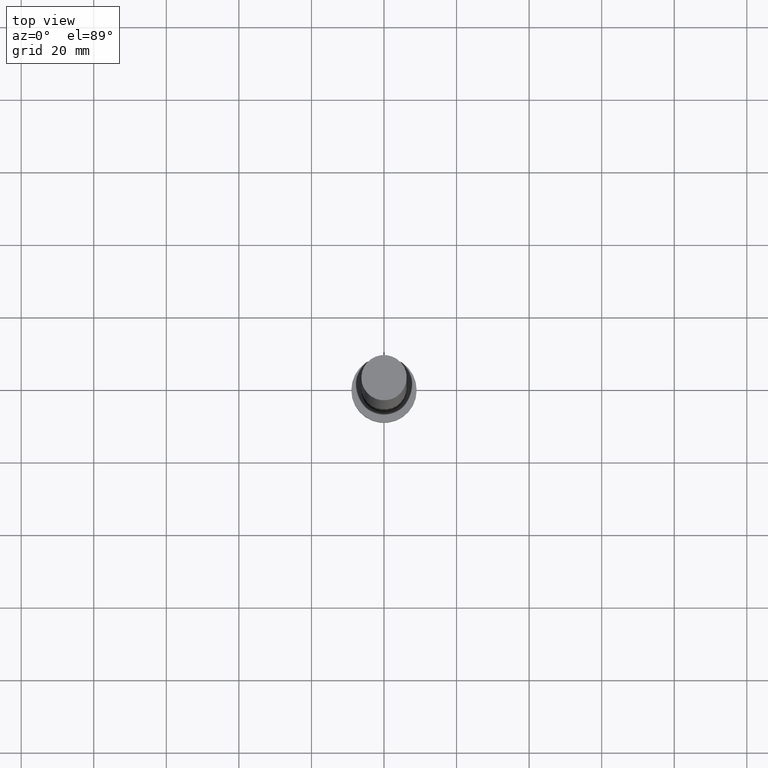
[diagram: clean part render]
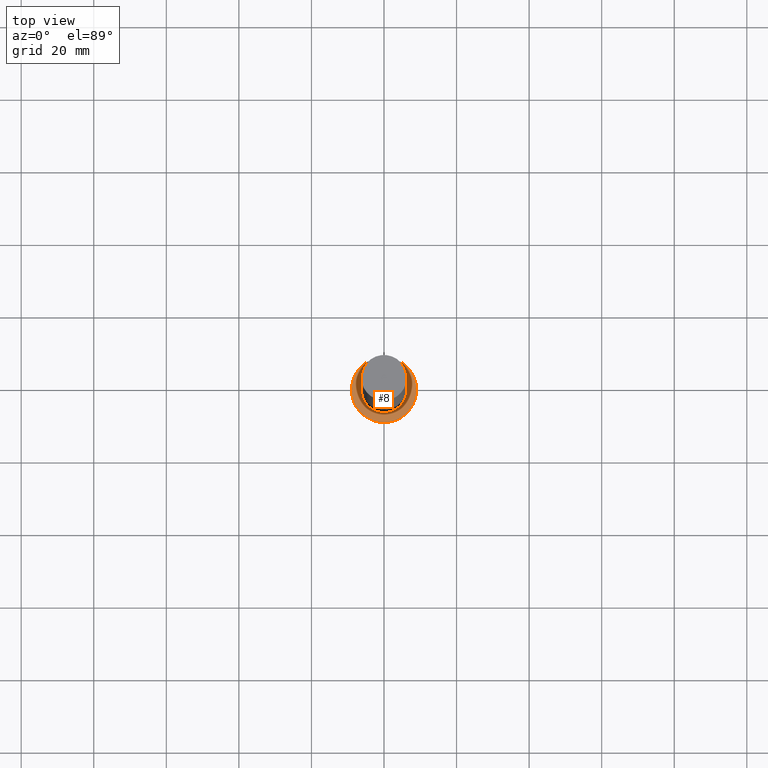
[diagram: same view with one face highlighted and labeled with its STEP entity id]
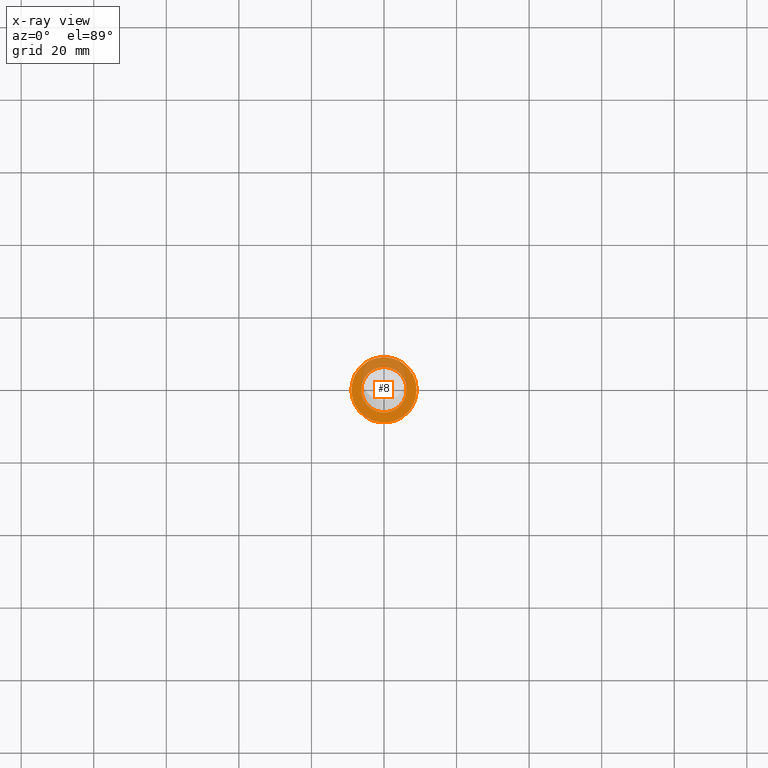
[diagram: x-ray of the same camera — body ghosted, the highlighted face saturated]
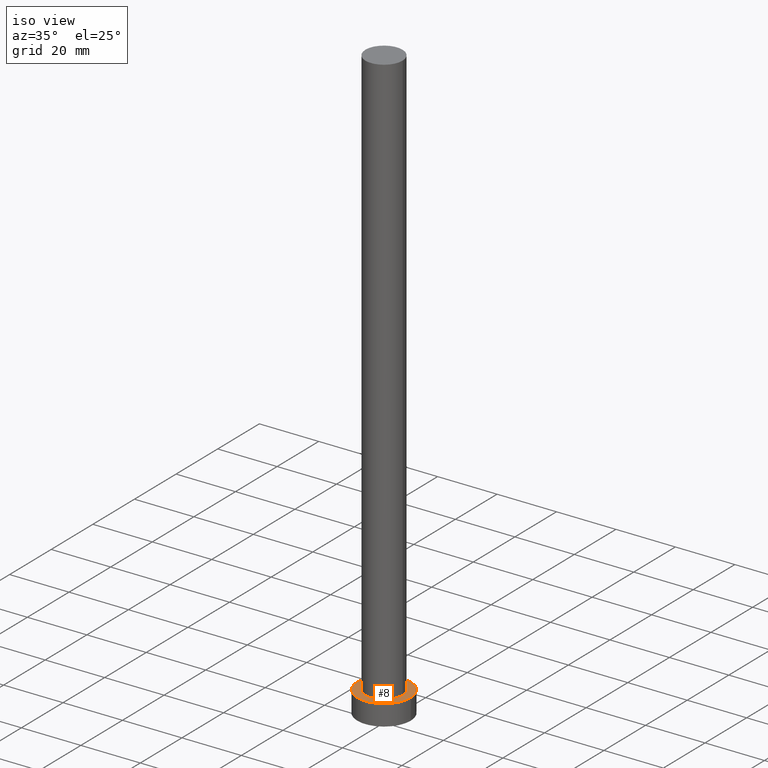
[diagram: same view with one face highlighted and labeled with its STEP entity id]
A machine part, top view. The second image highlights one B-rep face of the part: STEP entity #8.
The next image is the same camera in x-ray: the body ghosted, the highlighted face saturated — about 29% of this face is hidden behind the body in this view.
A second angle (iso view) of the same face is appended — the face is thin or edge-on in the first view.
In plain terms, the highlighted planar face has unit normal (0, 0, 1).
Its self-contained STEP definition (entity closure, byte-faithful):
#4 = AXIS2_PLACEMENT_3D ( 'NONE', #222, #186, #23 ) ;
#6 = ORIENTED_EDGE ( 'NONE', *, *, #29, .T. ) ;
#8 = ADVANCED_FACE ( 'NONE', ( #22, #67 ), #108, .T. ) ;
#10 = DIRECTION ( 'NONE',  ( 0.000000000000000000, 0.000000000000000000, 1.000000000000000000 ) ) ;
#12 = CARTESIAN_POINT ( 'NONE',  ( -6.250000000000000000, 0.000000000000000000, 7.000000000000000000 ) ) ;
#14 = AXIS2_PLACEMENT_3D ( 'NONE', #181, #10, #124 ) ;
#22 = FACE_BOUND ( 'NONE', #237, .T. ) ;
#23 = DIRECTION ( 'NONE',  ( 1.000000000000000000, 0.000000000000000000, -0.000000000000000000 ) ) ;
#29 = EDGE_CURVE ( 'NONE', #156, #79, #169, .T. ) ;
#33 = DIRECTION ( 'NONE',  ( 1.000000000000000000, 0.000000000000000000, 0.000000000000000000 ) ) ;
#38 = EDGE_CURVE ( 'NONE', #82, #49, #72, .T. ) ;
#43 = AXIS2_PLACEMENT_3D ( 'NONE', #236, #238, #114 ) ;
#46 = ORIENTED_EDGE ( 'NONE', *, *, #204, .F. ) ;
#49 = VERTEX_POINT ( 'NONE', #12 ) ;
#58 = EDGE_LOOP ( 'NONE', ( #191, #6 ) ) ;
#67 = FACE_OUTER_BOUND ( 'NONE', #58, .T. ) ;
#68 = ORIENTED_EDGE ( 'NONE', *, *, #38, .F. ) ;
#72 = CIRCLE ( 'NONE', #14, 6.250000000000000000 ) ;
#78 = DIRECTION ( 'NONE',  ( 1.000000000000000000, 0.000000000000000000, 0.000000000000000000 ) ) ;
#79 = VERTEX_POINT ( 'NONE', #248 ) ;
#82 = VERTEX_POINT ( 'NONE', #119 ) ;
#83 = AXIS2_PLACEMENT_3D ( 'NONE', #182, #255, #78 ) ;
#108 = PLANE ( 'NONE',  #4 ) ;
#114 = DIRECTION ( 'NONE',  ( 1.000000000000000000, 0.000000000000000000, 0.000000000000000000 ) ) ;
#119 = CARTESIAN_POINT ( 'NONE',  ( 6.250000000000000000, 7.654042494670957606E-16, 7.000000000000000000 ) ) ;
#123 = DIRECTION ( 'NONE',  ( 0.000000000000000000, 0.000000000000000000, 1.000000000000000000 ) ) ;
#124 = DIRECTION ( 'NONE',  ( 1.000000000000000000, 0.000000000000000000, 0.000000000000000000 ) ) ;
#128 = CARTESIAN_POINT ( 'NONE',  ( 9.000000000000000000, 1.102182119232617714E-15, 7.000000000000000000 ) ) ;
#155 = CIRCLE ( 'NONE', #83, 6.250000000000000000 ) ;
#156 = VERTEX_POINT ( 'NONE', #128 ) ;
#159 = CIRCLE ( 'NONE', #43, 9.000000000000000000 ) ;
#169 = CIRCLE ( 'NONE', #183, 9.000000000000000000 ) ;
#175 = CARTESIAN_POINT ( 'NONE',  ( 0.000000000000000000, 0.000000000000000000, 7.000000000000000000 ) ) ;
#181 = CARTESIAN_POINT ( 'NONE',  ( 0.000000000000000000, 0.000000000000000000, 7.000000000000000000 ) ) ;
#182 = CARTESIAN_POINT ( 'NONE',  ( 0.000000000000000000, 0.000000000000000000, 7.000000000000000000 ) ) ;
#183 = AXIS2_PLACEMENT_3D ( 'NONE', #175, #123, #33 ) ;
#186 = DIRECTION ( 'NONE',  ( 0.000000000000000000, 0.000000000000000000, 1.000000000000000000 ) ) ;
#191 = ORIENTED_EDGE ( 'NONE', *, *, #215, .T. ) ;
#204 = EDGE_CURVE ( 'NONE', #49, #82, #155, .T. ) ;
#215 = EDGE_CURVE ( 'NONE', #79, #156, #159, .T. ) ;
#222 = CARTESIAN_POINT ( 'NONE',  ( 0.000000000000000000, 0.000000000000000000, 7.000000000000000000 ) ) ;
#236 = CARTESIAN_POINT ( 'NONE',  ( 0.000000000000000000, 0.000000000000000000, 7.000000000000000000 ) ) ;
#237 = EDGE_LOOP ( 'NONE', ( #46, #68 ) ) ;
#238 = DIRECTION ( 'NONE',  ( 0.000000000000000000, 0.000000000000000000, 1.000000000000000000 ) ) ;
#248 = CARTESIAN_POINT ( 'NONE',  ( -9.000000000000000000, 0.000000000000000000, 7.000000000000000000 ) ) ;
#255 = DIRECTION ( 'NONE',  ( 0.000000000000000000, 0.000000000000000000, 1.000000000000000000 ) ) ;